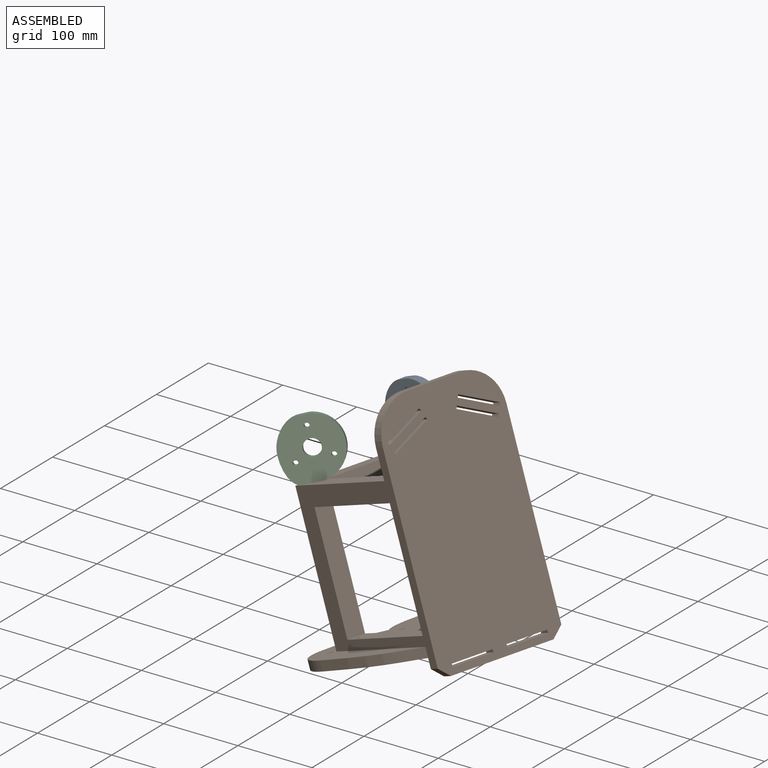
[diagram: assembled view]
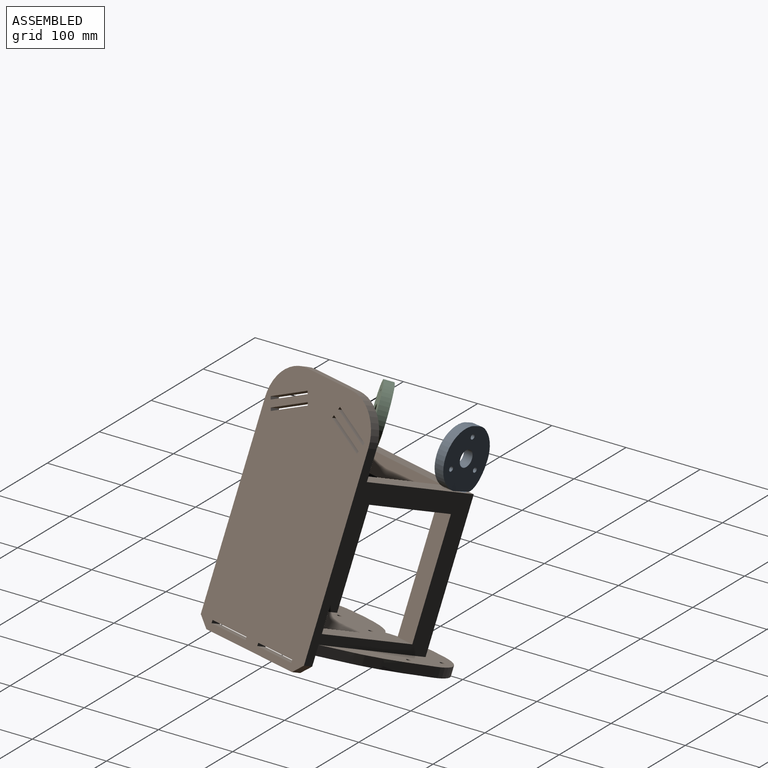
[diagram: assembled view, second angle]
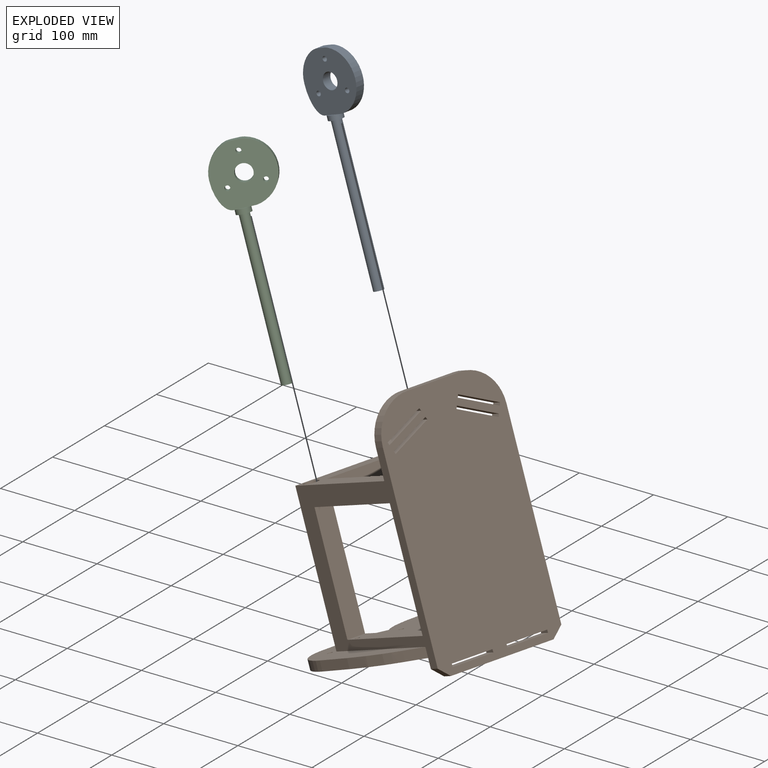
[diagram: exploded view]
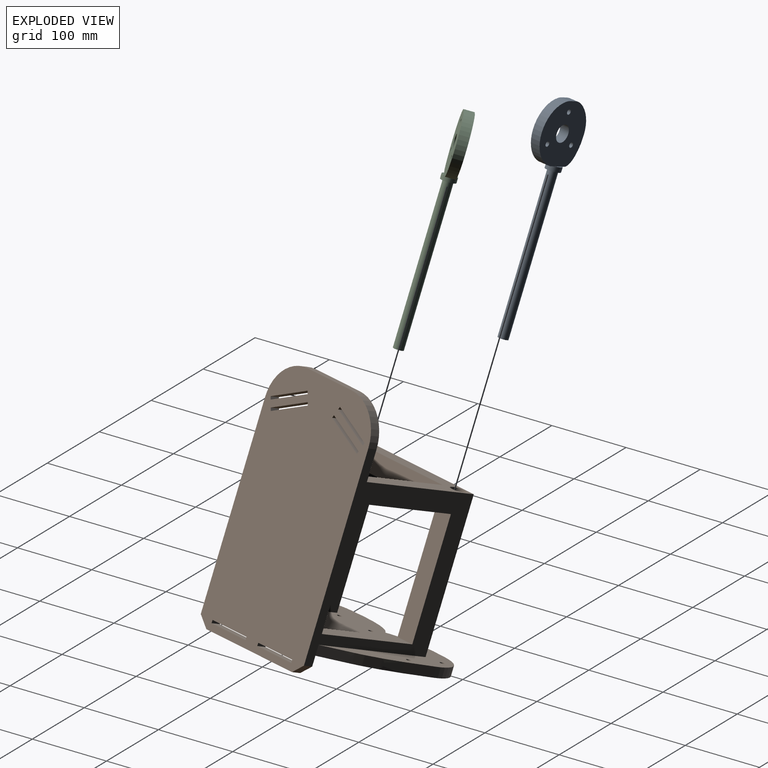
[diagram: exploded view, second angle]
ASSEMBLY  parts=3 mates=2
PART A: 23 faces, bbox 19.1x79.8x279.7 mm
  f0: plane 14.05x3.18mm, normal (0,-0.14,0.99), area 31.2mm2, adj f1,f14
  f1: cylinder r=9.53mm len=19.77mm, axis (0,0.14,-0.99), area 380mm2, adj f0,f2,f3,f6,f7,f13
  f2: plane 14.05x3.18mm, normal (0,-0.14,0.99), area 31.2mm2, adj f1,f15
  f3: plane 19.05x18.85mm, normal (0,0.14,-0.99), area 158.3mm2, adj f1,f4
  f4: cylinder r=6.35mm len=196.63mm, axis (0,0.14,-0.99), area 7854mm2, adj f3,f5
  f5: plane 12.7x12.57mm, normal (0,0.14,-0.99), area 102.2mm2, adj f4,f21
  f6: plane 6.35x2.4mm, normal (0,0.14,-0.99), area 4.8mm2, adj f1,f11,f14
  f7: plane 6.35x2.4mm, normal (0,0.14,-0.99), area 4.8mm2, adj f1,f11,f15
  f8: cylinder r=38.5mm len=75.2mm, axis (-1,0,0), area 1344.5mm2, adj f13,f14,f15,f16
  f9: plane 12.7x9.66mm, normal (0,-0.14,0.99), area 123.9mm2, adj f14,f15,f16,f17
  f10: cylinder r=39.69mm len=38mm, axis (-1,0,0), area 551.9mm2, adj f11,f14,f15,f17
  f11: extruded ~35.06x24.33mm, area 586mm2, adj f6,f7,f10,f14,f15
  f12: cylinder r=10.72mm len=21.44mm, axis (-1,0,0), area 855.3mm2, adj f14,f15
  f13: plane 12.7x9.45mm, normal (0,0.14,-0.99), area 100.1mm2, adj f1,f8,f14,f15
  f14: plane 80.69x79.81mm, normal (1,0,0), area 4449.6mm2, adj f0,f6,f8,f9,f10,f11,f12,f13
  f15: plane 80.69x79.81mm, normal (-1,0,0), area 4449.6mm2, adj f2,f7,f8,f9,f10,f11,f12,f13
  f16: cylinder r=25.4mm len=12.7mm, axis (-1,0,0), area 79.9mm2, adj f8,f9,f14,f15
  f17: cylinder r=25.4mm len=12.7mm, axis (-1,0,0), area 153.5mm2, adj f9,f10,f14,f15
  f18: cylinder r=3.17mm len=12.7mm, axis (-1,0,0), area 253.4mm2, adj f14,f15
  f19: cylinder r=3.17mm len=12.7mm, axis (-1,0,0), area 253.4mm2, adj f14,f15
  f20: cylinder r=3.17mm len=12.7mm, axis (-1,0,0), area 253.4mm2, adj f14,f15
  f21: cylinder r=2.79mm len=25.94mm, axis (0,0.14,-0.99), area 445.9mm2, adj f5,f22
  f22: plane 5.59x5.53mm, normal (0,0.14,-0.99), area 24.5mm2, adj f21
PART B: 73 faces, bbox 254x221.9x320.8 mm
  f0: plane 254x203.85mm, normal (0,0.14,-0.99), area 45102.6mm2, adj f2,f7,f33,f35,f36,f37,f59,f61
  f1: plane 254x203.85mm, normal (0,-0.14,0.99), area 37469mm2, adj f2,f3,f4,f5,f6,f35,f36,f37
  f2: extruded ~81.18x22.91mm, area 1102.2mm2, adj f0,f1,f35,f37
  f3: plane 276.5x177.8mm, normal (0,-0.99,-0.14), area 45743.9mm2, adj f1,f4,f5,f9,f11,f12,f13,f14
  f4: plane 187.11x167.04mm, normal (1,0,0), area 5967.7mm2, adj f1,f3,f6,f14,f15,f16
  f5: plane 253.19x206.98mm, normal (-1,0,0), area 13387.1mm2, adj f1,f3,f6,f7,f8,f11,f13,f14
  f6: plane 188.52x177.8mm, normal (0,-0.99,-0.14), area 12903.2mm2, adj f1,f4,f5,f11,f16,f38,f39
  f7: plane 177.8x25.14mm, normal (0,-0.99,-0.14), area 3878.7mm2, adj f0,f5,f10,f26,f27,f28,f29,f39
  f8: plane 314.2x177.8mm, normal (0,0.99,0.14), area 53816.2mm2, adj f5,f9,f10,f18,f19,f20,f21,f22
  f9: plane 76.2x12.57mm, normal (0,-0.14,0.99), area 967.7mm2, adj f3,f8,f71,f72
  f10: plane 147.53x12.57mm, normal (0,0.14,-0.99), area 1873.6mm2, adj f7,f8,f69,f70
  f11: plane 177.8x163.39mm, normal (0,-0.14,0.99), area 11042.8mm2, adj f3,f5,f6,f12,f17,f31,f39,f40
  f12: plane 141.9x45.21mm, normal (1,0,0), area 3548.4mm2, adj f3,f11,f13,f17
  f13: plane 138.25x25.4mm, normal (0,0.14,-0.99), area 3548.4mm2, adj f3,f5,f12,f15
  f14: plane 138.25x25.4mm, normal (0,-0.14,0.99), area 3548.4mm2, adj f3,f4,f5,f15
  f15: plane 150.82x25.4mm, normal (0,0.99,0.14), area 3871mm2, adj f4,f5,f13,f14
  f16: plane 127x25.14mm, normal (0,0.14,-0.99), area 3225.8mm2, adj f4,f6,f17,f38
  f17: plane 127x25.14mm, normal (0,0.99,0.14), area 3225.8mm2, adj f11,f12,f16,f40
  f18: plane 13.07x5.25mm, normal (0.91,-0.06,0.41), area 48.4mm2, adj f3,f8,f19,f21
  f19: plane 53.07x25.99mm, normal (-0.42,-0.13,0.9), area 741.9mm2, adj f3,f8,f18,f20
  f20: plane 13.07x5.25mm, normal (-0.91,0.06,-0.41), area 48.4mm2, adj f3,f8,f19,f21
  f21: plane 53.07x25.99mm, normal (0.42,0.13,-0.9), area 741.9mm2, adj f3,f8,f18,f20
  f22: plane 53.07x25.99mm, normal (0.42,0.13,-0.9), area 741.9mm2, adj f3,f8,f23,f24
  f23: plane 13.07x5.25mm, normal (-0.91,0.06,-0.41), area 48.4mm2, adj f3,f8,f22,f25
  f24: plane 13.07x5.25mm, normal (0.91,-0.06,0.41), area 48.4mm2, adj f3,f8,f22,f25
  f25: plane 53.07x25.99mm, normal (-0.42,-0.13,0.9), area 741.9mm2, adj f3,f8,f23,f24
  f26: plane 13.12x5.6mm, normal (1,0,0), area 48.4mm2, adj f7,f8,f27,f29
  f27: plane 58.42x12.57mm, normal (0,-0.14,0.99), area 741.9mm2, adj f7,f8,f26,f28
  f28: plane 13.12x5.6mm, normal (-1,0,0), area 48.4mm2, adj f7,f8,f27,f29
  f29: plane 58.42x12.57mm, normal (0,0.14,-0.99), area 741.9mm2, adj f7,f8,f26,f28
  f30: cylinder r=6.35mm len=190.35mm, axis (0,-0.14,0.99), area 7600.6mm2, adj f32,f34
  f31: cylinder r=9.53mm len=19.77mm, axis (0,-0.14,0.99), area 380mm2, adj f11,f32
  f32: plane 19.05x18.85mm, normal (0,-0.14,0.99), area 158.3mm2, adj f30,f31
  f33: cylinder r=10.72mm len=22.13mm, axis (0,0.14,-0.99), area 427.7mm2, adj f0,f34
  f34: plane 21.44x21.22mm, normal (0,0.14,-0.99), area 234.3mm2, adj f30,f33
  f35: cylinder r=50.8mm len=56.78mm, axis (0,0.14,-0.99), area 1013.4mm2, adj f0,f1,f2,f36
  f36: extruded ~147.72x37.86mm, area 1950.4mm2, adj f0,f1,f5,f35
  f37: extruded ~81.18x22.91mm, area 1102.2mm2, adj f0,f1,f2,f61
  f38: plane 187.11x167.04mm, normal (-1,0,0), area 5967.7mm2, adj f1,f3,f6,f16,f42,f43
  f39: plane 253.19x206.98mm, normal (1,0,0), area 13387.1mm2, adj f1,f3,f6,f7,f8,f11,f41,f42
  f40: plane 141.9x45.21mm, normal (-1,0,0), area 3548.4mm2, adj f3,f11,f17,f41
  f41: plane 138.25x25.4mm, normal (0,0.14,-0.99), area 3548.4mm2, adj f3,f39,f40,f43
  f42: plane 138.25x25.4mm, normal (0,-0.14,0.99), area 3516.7mm2, adj f3,f38,f39,f43,f68
  f43: plane 150.82x25.4mm, normal (0,0.99,0.14), area 3871mm2, adj f38,f39,f41,f42
  f44: plane 13.07x5.25mm, normal (-0.91,-0.06,0.41), area 48.4mm2, adj f3,f8,f45,f47
  f45: plane 53.07x25.99mm, normal (0.42,-0.13,0.9), area 741.9mm2, adj f3,f8,f44,f46
  f46: plane 13.07x5.25mm, normal (0.91,0.06,-0.41), area 48.4mm2, adj f3,f8,f45,f47
  f47: plane 53.07x25.99mm, normal (-0.42,0.13,-0.9), area 741.9mm2, adj f3,f8,f44,f46
  f48: plane 53.07x25.99mm, normal (-0.42,0.13,-0.9), area 741.9mm2, adj f3,f8,f49,f50
  f49: plane 13.07x5.25mm, normal (0.91,0.06,-0.41), area 48.4mm2, adj f3,f8,f48,f51
  f50: plane 13.07x5.25mm, normal (-0.91,-0.06,0.41), area 48.4mm2, adj f3,f8,f48,f51
  f51: plane 53.07x25.99mm, normal (0.42,-0.13,0.9), area 741.9mm2, adj f3,f8,f49,f50
  f52: plane 13.12x5.6mm, normal (-1,0,0), area 48.4mm2, adj f7,f8,f53,f55
  f53: plane 58.42x12.57mm, normal (0,-0.14,0.99), area 741.9mm2, adj f7,f8,f52,f54
  f54: plane 13.12x5.6mm, normal (1,0,0), area 48.4mm2, adj f7,f8,f53,f55
  f55: plane 58.42x12.57mm, normal (0,0.14,-0.99), area 741.9mm2, adj f7,f8,f52,f54
  f56: cylinder r=6.35mm len=190.35mm, axis (0,-0.14,0.99), area 7600.6mm2, adj f58,f60
  f57: cylinder r=9.53mm len=19.77mm, axis (0,-0.14,0.99), area 380mm2, adj f11,f58
  f58: plane 19.05x18.85mm, normal (0,-0.14,0.99), area 158.3mm2, adj f56,f57
  f59: cylinder r=10.72mm len=22.13mm, axis (0,0.14,-0.99), area 427.7mm2, adj f0,f60
  f60: plane 21.44x21.22mm, normal (0,0.14,-0.99), area 234.3mm2, adj f56,f59
  f61: cylinder r=50.8mm len=56.78mm, axis (0,0.14,-0.99), area 1013.4mm2, adj f0,f1,f37,f62
  f62: extruded ~147.72x37.86mm, area 1950.4mm2, adj f0,f1,f39,f61
  f63: cylinder r=3.17mm len=13.48mm, axis (0,0.14,-0.99), area 253.4mm2, adj f0,f1
  f64: cylinder r=3.17mm len=13.48mm, axis (0,0.14,-0.99), area 253.4mm2, adj f0,f1
  f65: cylinder r=3.17mm len=13.48mm, axis (0,0.14,-0.99), area 253.4mm2, adj f0,f1
  f66: cylinder r=3.17mm len=13.48mm, axis (0,0.14,-0.99), area 253.4mm2, adj f0,f1
  f67: cylinder r=3.17mm len=13.48mm, axis (0,0.14,-0.99), area 253.4mm2, adj f0,f1
  f68: cylinder r=3.17mm len=26.05mm, axis (0,0.14,-0.99), area 506.7mm2, adj f0,f42
  f69: plane 15.14x14.39mm, normal (-0.64,0.11,-0.76), area 250.9mm2, adj f5,f7,f8,f10
  f70: plane 15.14x14.39mm, normal (0.64,0.11,-0.76), area 250.9mm2, adj f7,f8,f10,f39
  f71: cylinder r=50.8mm len=52.1mm, axis (0,0.99,0.14), area 1013.4mm2, adj f3,f8,f9,f39
  f72: cylinder r=50.8mm len=52.1mm, axis (0,0.99,0.14), area 1013.4mm2, adj f3,f5,f8,f9
PART C: same geometry as A
PLACE A rot(axis=(0.07,-0.14,-0.99),96.4deg) t=(149.23,-9.31,28.49)mm
PLACE B rot(axis=(0.09,-0.11,-0.99),105.8deg) t=(135.52,-16.79,23.99)mm
PLACE C rot(axis=(-0.04,-0.3,-0.95),59.6deg) t=(147.83,-106.14,37.57)mm
MATE revolute A.f4 <-> B.f33  axis (0.36,-0.09,-0.93) through (149.16,59.06,-114.13)mm
MATE revolute C.f4 <-> B.f59  axis (0.36,-0.09,-0.93) through (109.32,-88.04,-114.76)mm
